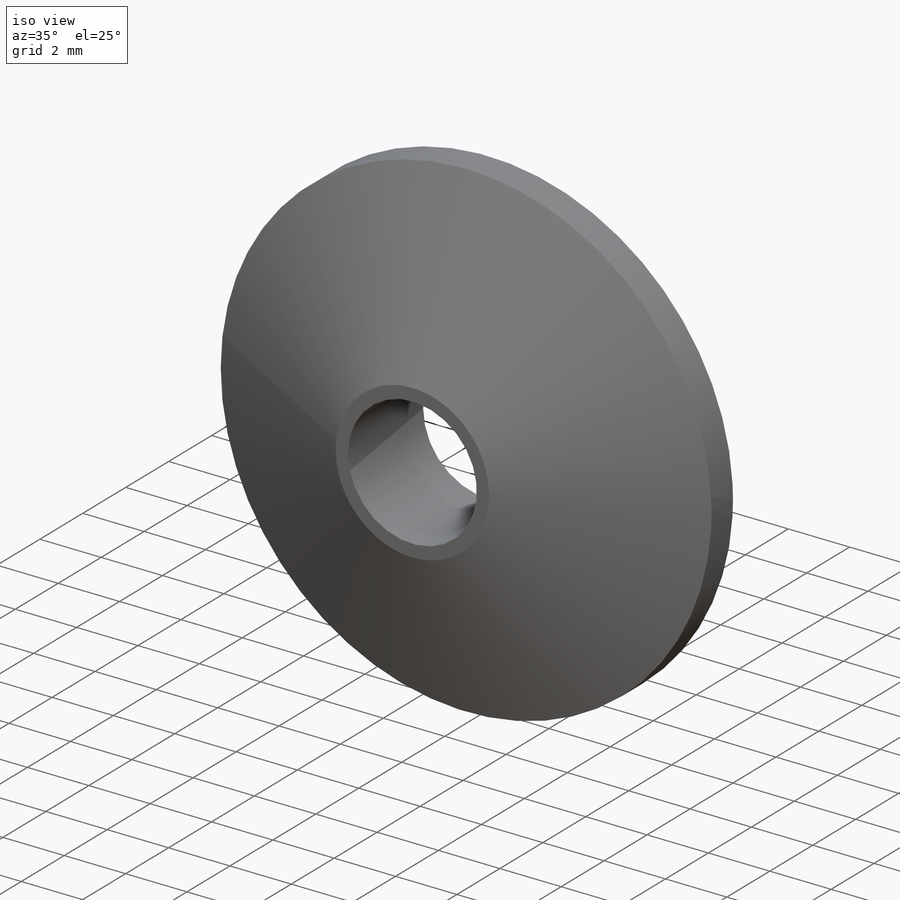
[diagram: iso view]
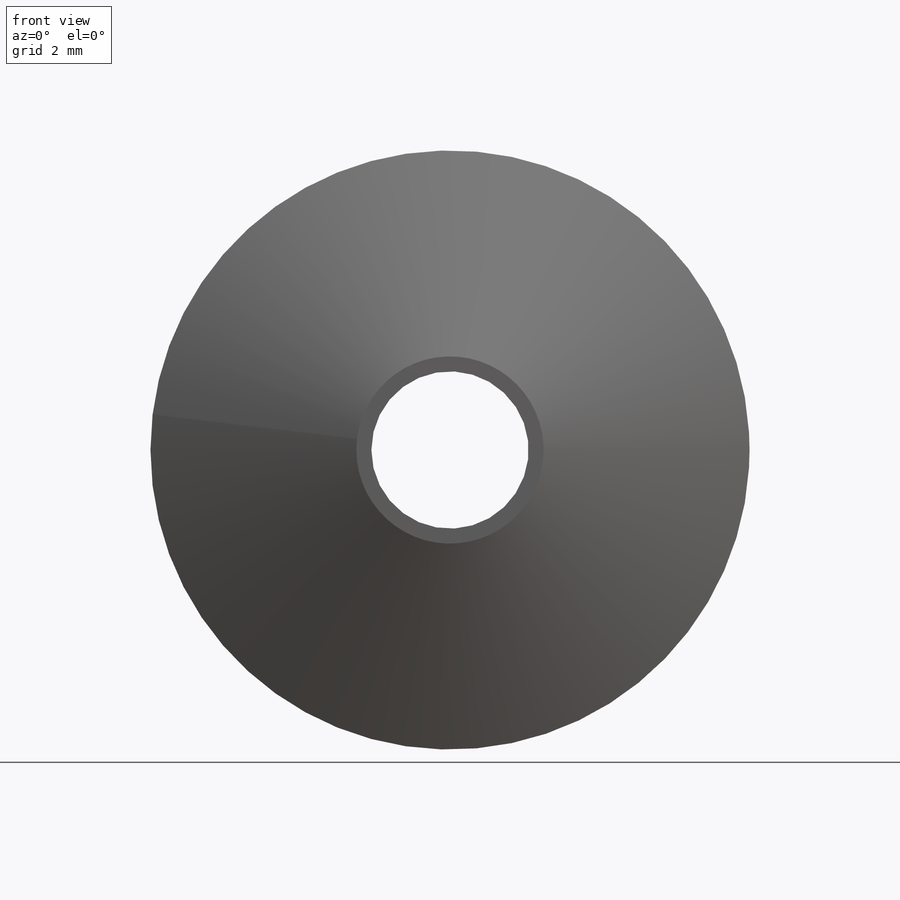
[diagram: front view]
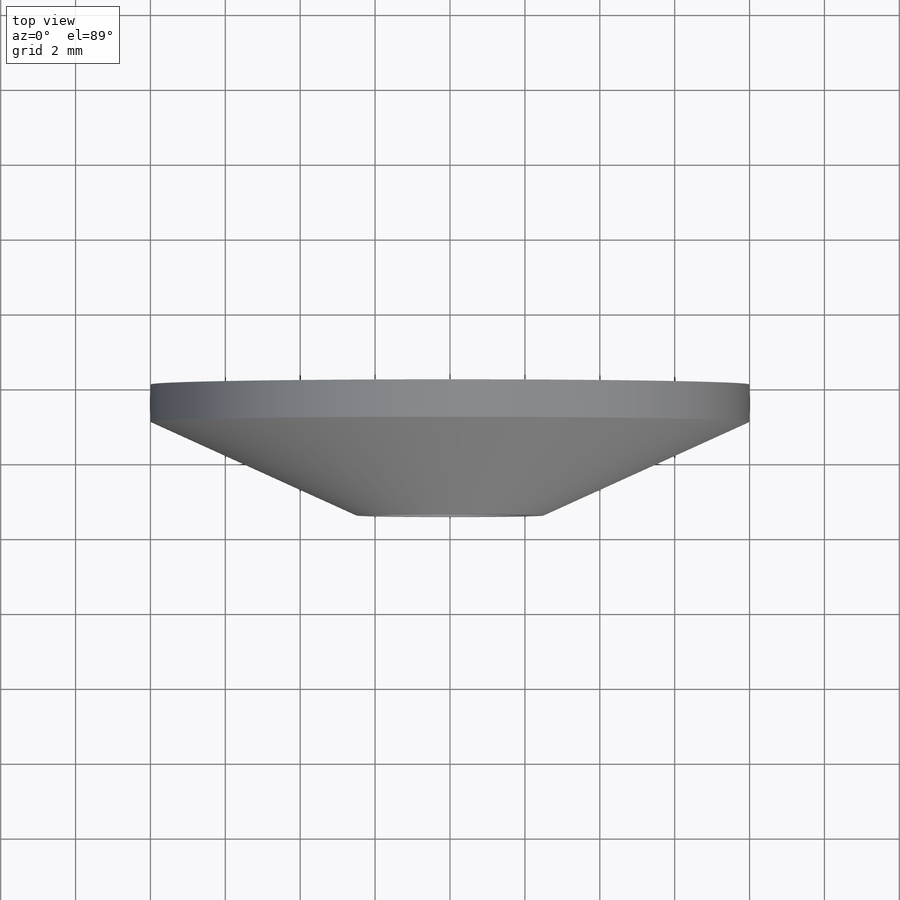
[diagram: top view]
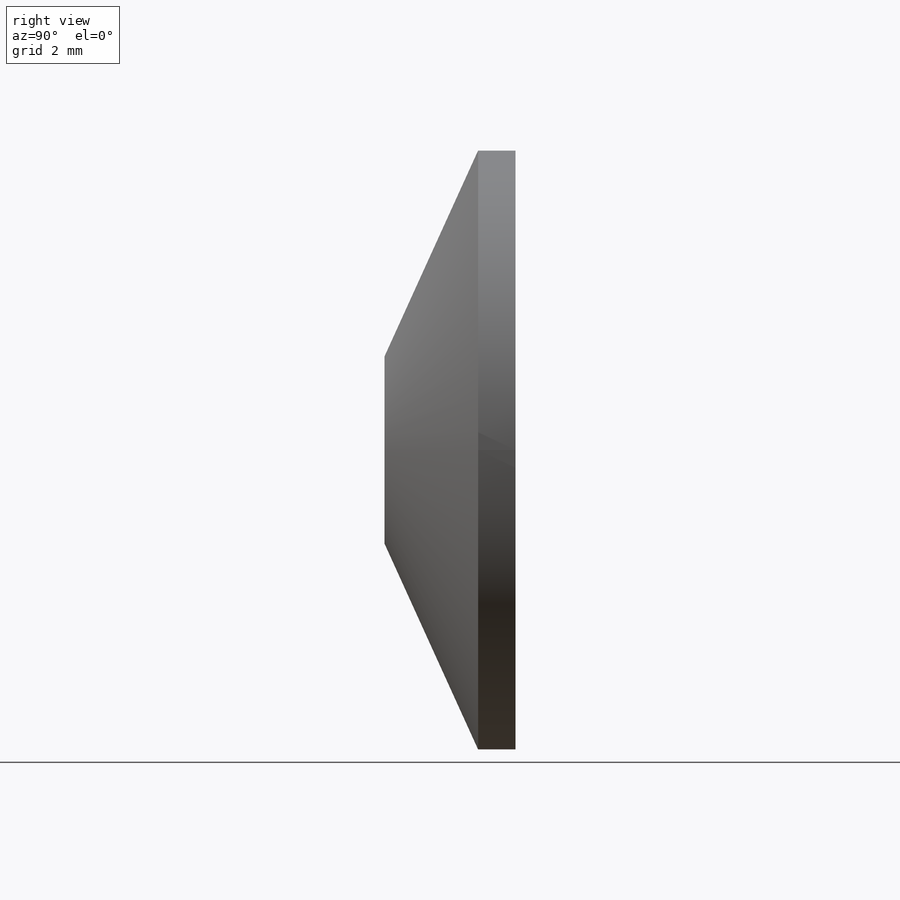
[diagram: right view]
SOLIDWORKS PART (.sldprt)
format: sldprt  version: not decoded by parser v0  size: 147,456 bytes
history: native  units: mm
features: sketch x3, material x1, extrude x1, chamfer x1, hole x1 (+16 scaffold rows collapsed)
feature tree (23):
  scaffold x16  (default folders/planes/origin — collapsed)
  material  "Material <not specified>"
  sketch  "Sketch1"  dims[D1=16.0mm]
  extrude  "Boss-Extrude1"  Depth=3.5mm
  chamfer  "Chamfer1"  Distance=2.5mm
  hole  "Tap Drill for M5x0.8 Tap1"  Diameter=4.2mm Depth=3.5mm
  sketch  "Sketch4"
  sketch  "Sketch3"  dims[hole-wizard template sketch: 60 standard entries collapsed; hole parameters kept: c18.Thru Hole Depth=3.5mm]
decode coverage: 5 of 6 modeling features carry decoded parameters
note: ~ marks probable driven/reference dimensions
note: suppression state not decoded; provenance and decode notes live in map.json
